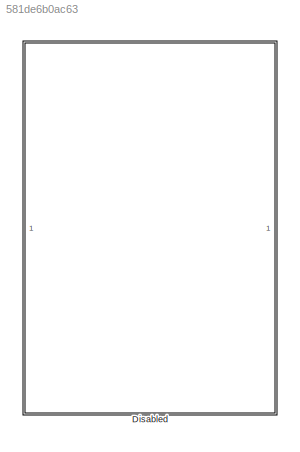
MODEL slx_581de6b0ac63
KIND library
CONFIG AbsTol = auto
CONFIG EnableMultiTasking = off
CONFIG FixedStep = auto
CONFIG MaxStep = auto
CONFIG MinStep = auto
CONFIG RelTol = 1e-3
CONFIG SampleTimeConstraint = Unconstrained
CONFIG SolverName = VariableStepAuto
CONFIG StartTime = 0.0
CONFIG StopTime = 10.0
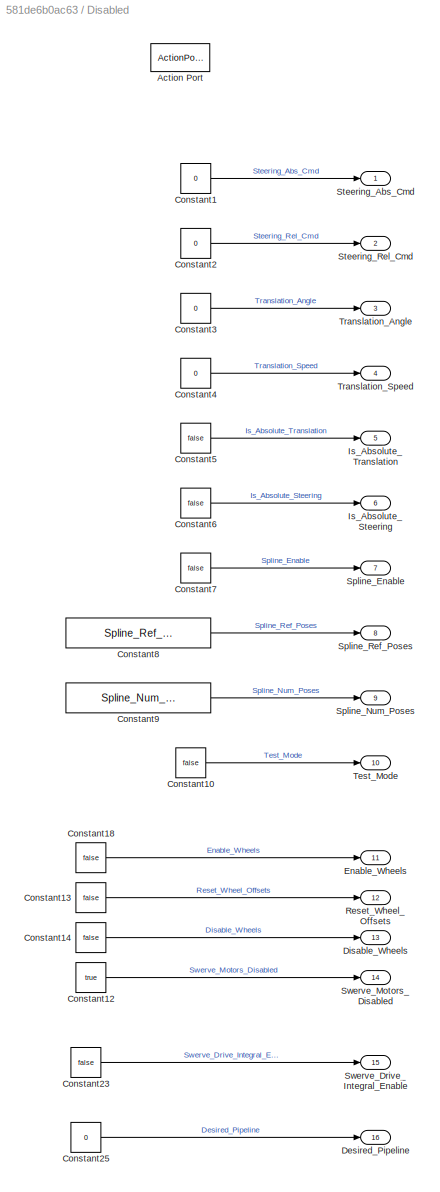
BLOCK [SubSystem] Disabled
  TreatAsAtomicUnit = on
BLOCK [ActionPort] Disabled/Action Port
BLOCK [Constant] Disabled/Constant1
  Value = 0
BLOCK [Constant] Disabled/Constant10
  OutDataTypeStr = boolean
  Value = false
BLOCK [Constant] Disabled/Constant12
  OutDataTypeStr = boolean
  Value = true
BLOCK [Constant] Disabled/Constant13
  OutDataTypeStr = boolean
  Value = false
BLOCK [Constant] Disabled/Constant14
  OutDataTypeStr = boolean
  Value = false
BLOCK [Constant] Disabled/Constant18
  OutDataTypeStr = boolean
  Value = false
BLOCK [Constant] Disabled/Constant2
  Value = 0
BLOCK [Constant] Disabled/Constant23
  OutDataTypeStr = boolean
  Value = false
BLOCK [Constant] Disabled/Constant25
  OutDataTypeStr = uint8
  Value = 0
BLOCK [Constant] Disabled/Constant3
  Value = 0
BLOCK [Constant] Disabled/Constant4
  Value = 0
BLOCK [Constant] Disabled/Constant5
  Value = false
BLOCK [Constant] Disabled/Constant6
  Value = false
BLOCK [Constant] Disabled/Constant7
  OutDataTypeStr = boolean
  Value = false
BLOCK [Constant] Disabled/Constant8
  Value = Spline_Ref_Poses_default
BLOCK [Constant] Disabled/Constant9
  OutDataTypeStr = double
  Value = Spline_Num_Poses_default
BLOCK [Outport] Disabled/Desired_Pipeline
  Port = 16
BLOCK [Outport] Disabled/Disable_Wheels
  Port = 13
BLOCK [Outport] Disabled/Enable_Wheels
  Port = 11
BLOCK [Outport] Disabled/Is_Absolute_Steering
  Port = 6
BLOCK [Outport] Disabled/Is_Absolute_Translation
  Port = 5
BLOCK [Outport] Disabled/Reset_Wheel_Offsets
  Port = 12
BLOCK [Outport] Disabled/Spline_Enable
  Port = 7
BLOCK [Outport] Disabled/Spline_Num_Poses
  Port = 9
BLOCK [Outport] Disabled/Spline_Ref_Poses
  Port = 8
BLOCK [Outport] Disabled/Steering_Abs_Cmd
BLOCK [Outport] Disabled/Steering_Rel_Cmd
  Port = 2
BLOCK [Outport] Disabled/Swerve_Drive_Integral_Enable
  Port = 15
BLOCK [Outport] Disabled/Swerve_Motors_Disabled
  Port = 14
BLOCK [Outport] Disabled/Test_Mode
  Port = 10
BLOCK [Outport] Disabled/Translation_Angle
  Port = 3
BLOCK [Outport] Disabled/Translation_Speed
  Port = 4
LINE Disabled/Constant10:1 -> Disabled/Test_Mode:1
LINE Disabled/Constant12:1 -> Disabled/Swerve_Motors_Disabled:1
LINE Disabled/Constant13:1 -> Disabled/Reset_Wheel_Offsets:1
LINE Disabled/Constant14:1 -> Disabled/Disable_Wheels:1
LINE Disabled/Constant18:1 -> Disabled/Enable_Wheels:1
LINE Disabled/Constant1:1 -> Disabled/Steering_Abs_Cmd:1
LINE Disabled/Constant23:1 -> Disabled/Swerve_Drive_Integral_Enable:1
LINE Disabled/Constant25:1 -> Disabled/Desired_Pipeline:1
LINE Disabled/Constant2:1 -> Disabled/Steering_Rel_Cmd:1
LINE Disabled/Constant3:1 -> Disabled/Translation_Angle:1
LINE Disabled/Constant4:1 -> Disabled/Translation_Speed:1
LINE Disabled/Constant5:1 -> Disabled/Is_Absolute_Translation:1
LINE Disabled/Constant6:1 -> Disabled/Is_Absolute_Steering:1
LINE Disabled/Constant7:1 -> Disabled/Spline_Enable:1
LINE Disabled/Constant8:1 -> Disabled/Spline_Ref_Poses:1
LINE Disabled/Constant9:1 -> Disabled/Spline_Num_Poses:1
